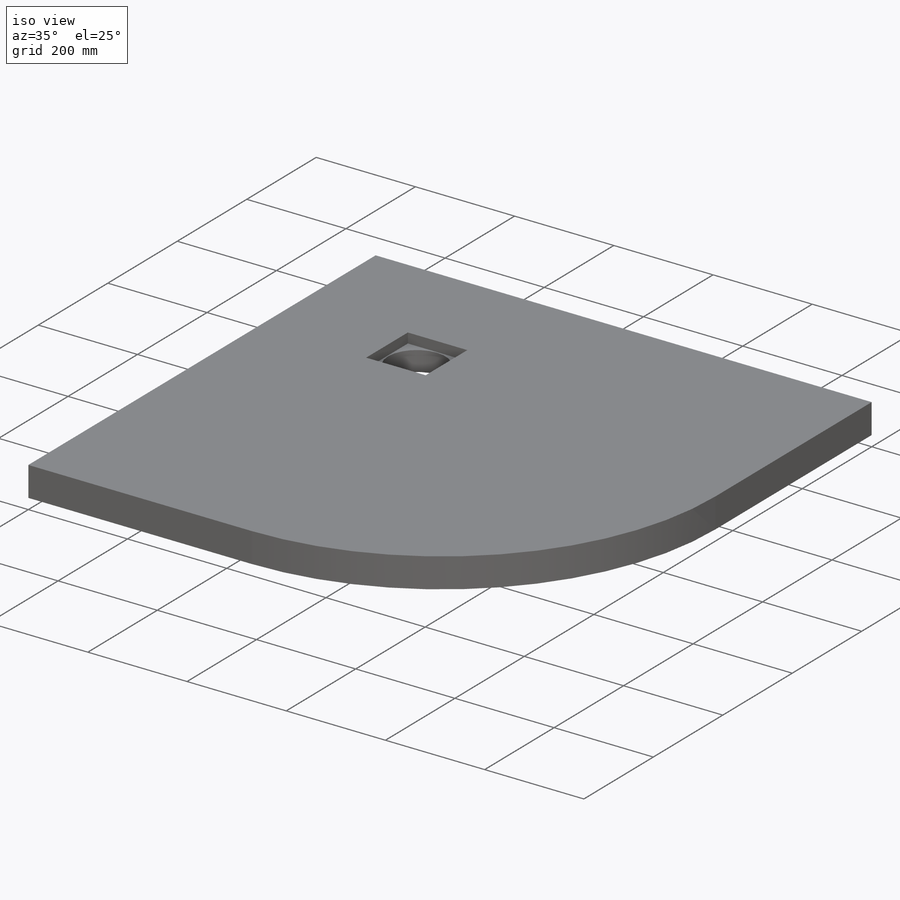
[diagram: iso view]
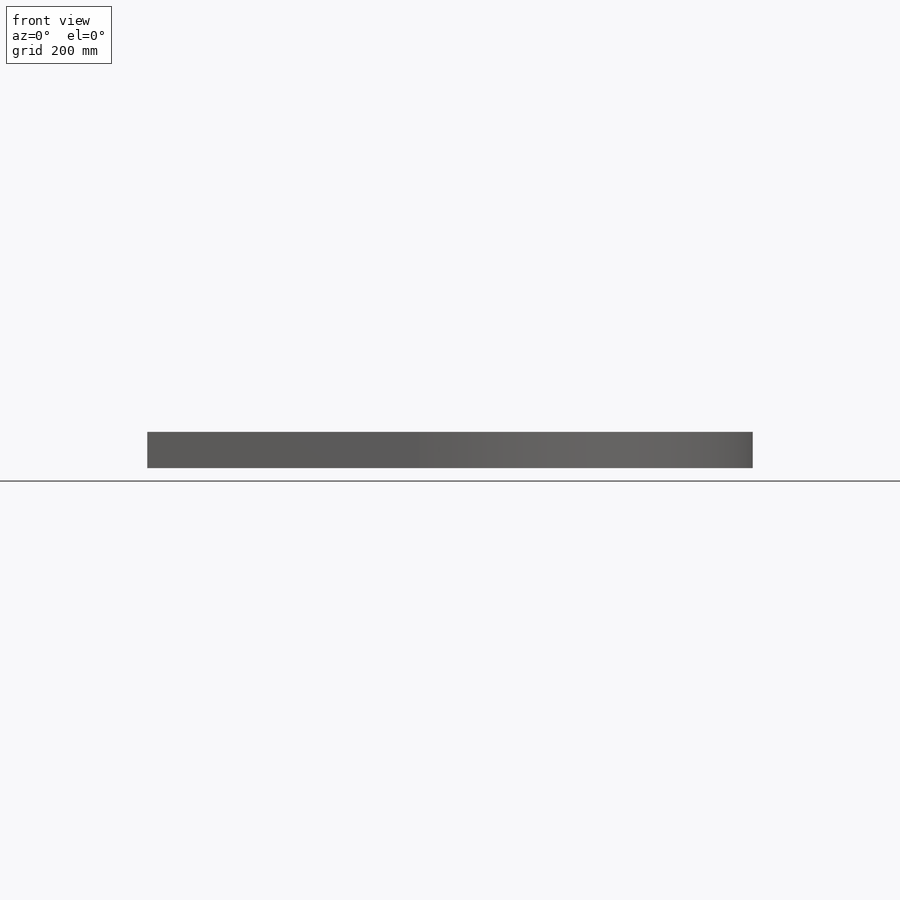
[diagram: front view]
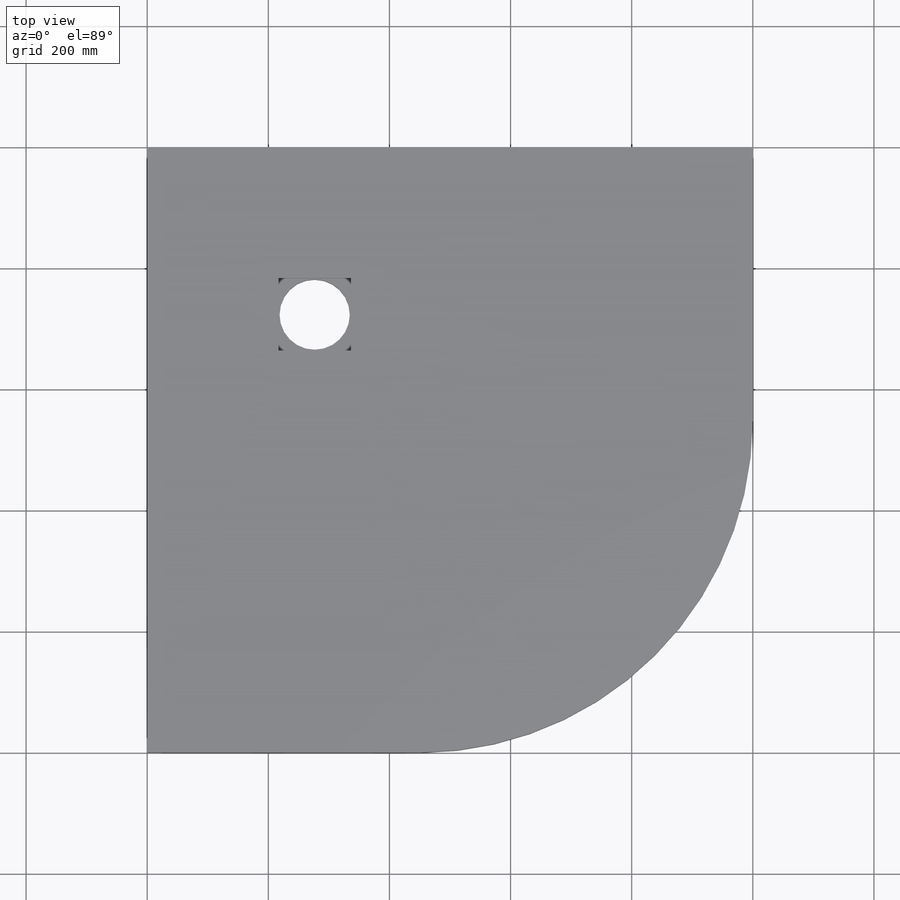
[diagram: top view]
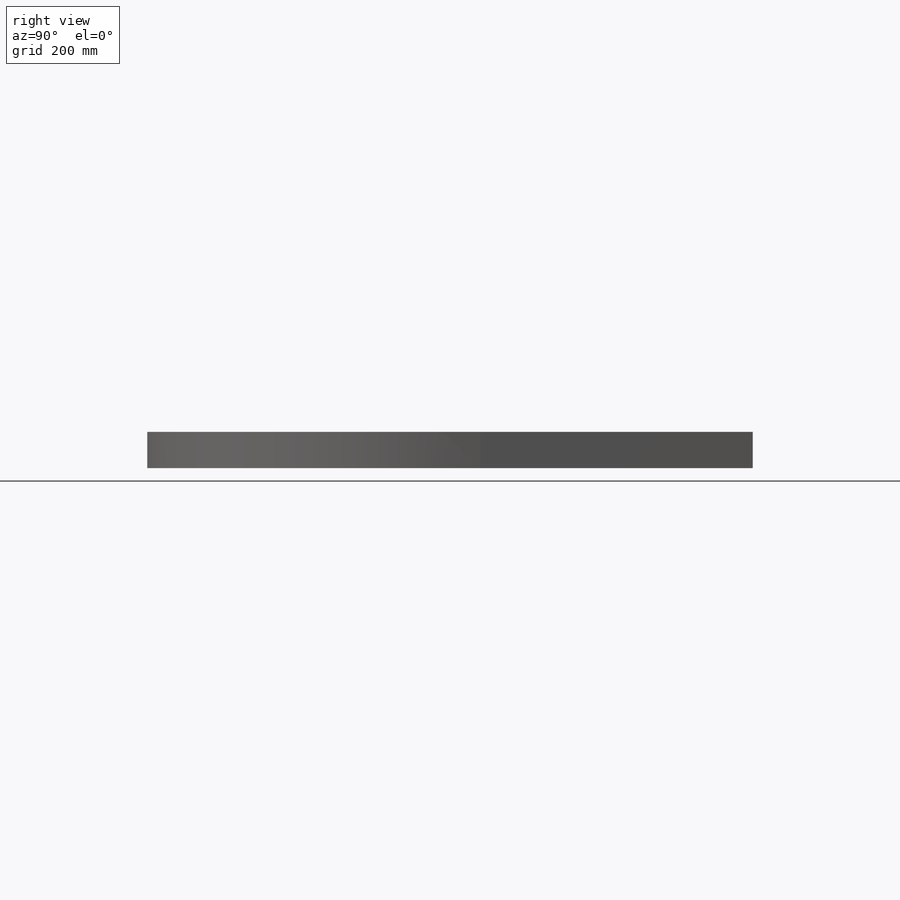
[diagram: right view]
SOLIDWORKS PART (.sldprt)
format: sldprt  version: not decoded by parser v0  size: 202,752 bytes
history: native  units: mm
features: sketch x6, plane x3, cut_extrude x3, material x1, extrude x1 (+8 scaffold rows collapsed)
feature tree (22):
  scaffold x8  (default folders/planes/origin — collapsed)
  material  "Material <nicht festgelegt>"
  plane  "Ebene vorne"
  plane  "Ebene oben"
  plane  "Ebene rechts"
  sketch  "Skizze1"  dims[D1=1000.0mm D2=60.0mm]
  extrude  "Aufsatz-Linear austragen1"  Depth=1000mm
  sketch  "Skizze2"  dims[D3=550.0mm D1=550.0mm D2=550.0mm]
  cut_extrude  "Schnitt-Linear austragen1"  Depth=1000mm
  sketch  "Skizze3"  dims[D3=116.0mm D1=276.5mm D2=276.5mm]
  cut_extrude  "Schnitt-Linear austragen2"  [1 undecoded]
  sketch  "Skizze4"  dims[c1.D3=116.0mm c1.D4=116.0mm c1.D1=120.0mm c1.D2=120.0mm c2.D3=60.0mm c2.D4=60.0mm]
  cut_extrude  "Schnitt-Linear austragen3"  Depth=20mm
  sketch  "Skizze13"
  sketch  "Skizze14"
decode coverage: 7 of 10 modeling features carry decoded parameters
note: 1 parameter value undecoded
note: suppression state not decoded; provenance and decode notes live in map.json
